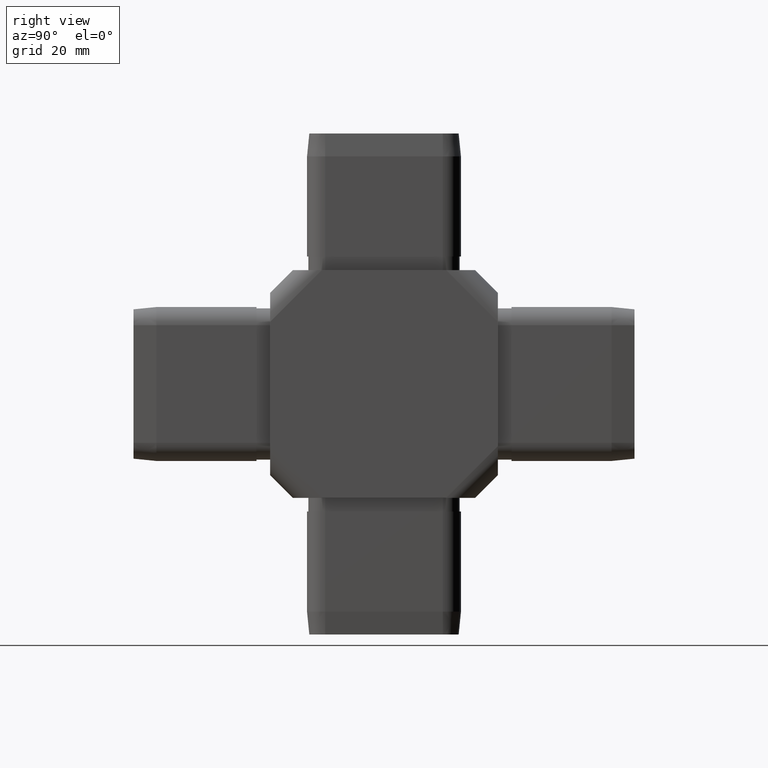
[diagram: clean part render]
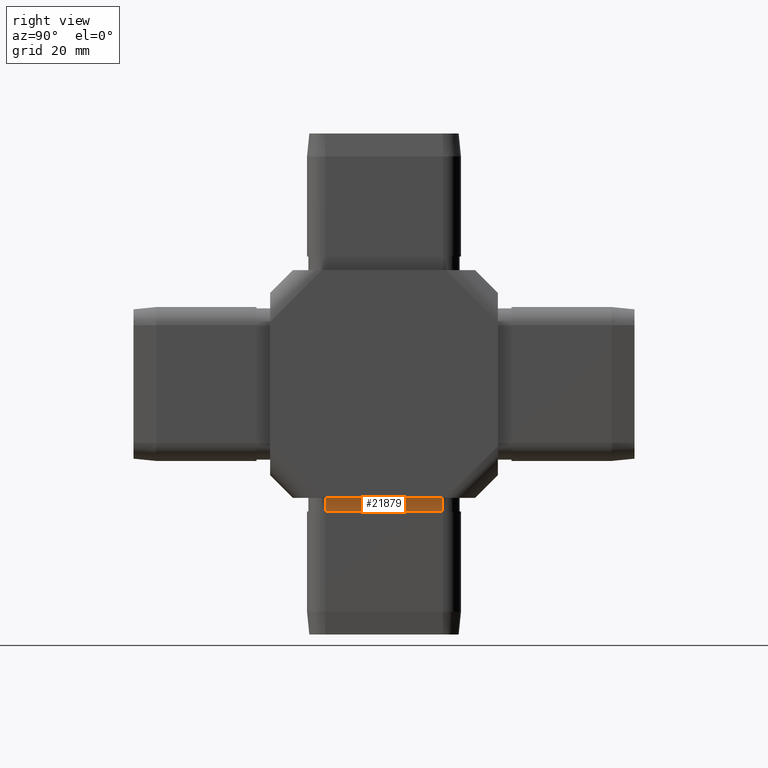
[diagram: same view with one face highlighted and labeled with its STEP entity id]
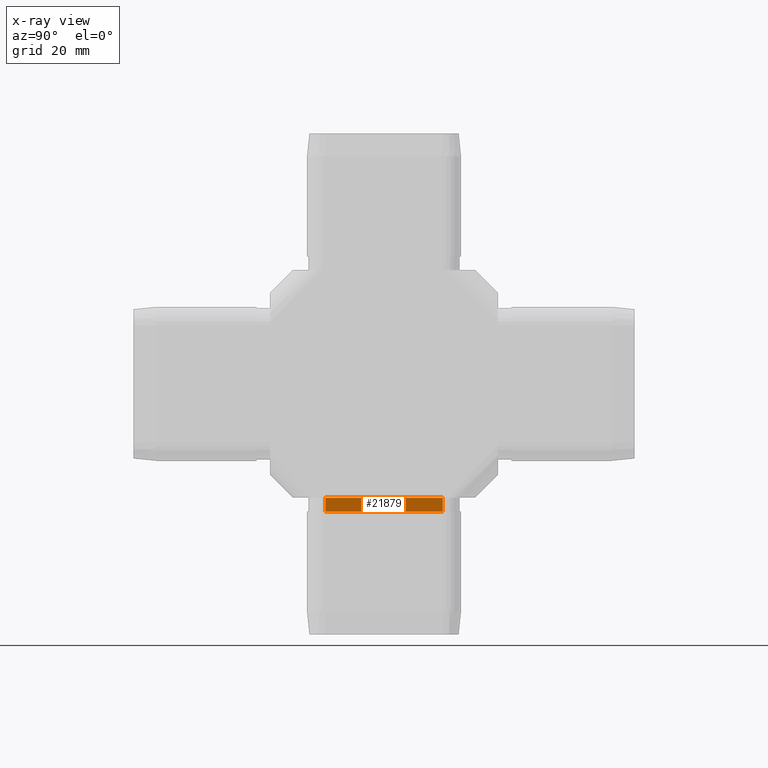
[diagram: x-ray of the same camera — body ghosted, the highlighted face saturated]
A machine part, right view. The second image highlights one B-rep face of the part: STEP entity #21879.
The next image is the same camera in x-ray: the body ghosted, the highlighted face saturated — about 0% of this face is hidden behind the body in this view.
In plain terms, the highlighted planar face has unit normal (1, 0, -0).
Its self-contained STEP definition (entity closure, byte-faithful):
#418 = VECTOR ( 'NONE', #23440, 1000.000000000000000 ) ;
#836 = LINE ( 'NONE', #19457, #20904 ) ;
#1452 = EDGE_LOOP ( 'NONE', ( #8921, #24577, #30544, #4935 ) ) ;
#2076 = EDGE_CURVE ( 'NONE', #27338, #2261, #27771, .T. ) ;
#2261 = VERTEX_POINT ( 'NONE', #8167 ) ;
#2726 = DIRECTION ( 'NONE',  ( 0.0000000000000000000, 0.0000000000000000000, 1.000000000000000000 ) ) ;
#4637 = DIRECTION ( 'NONE',  ( 1.000000000000000000, 1.344746880602177700E-016, -0.0000000000000000000 ) ) ;
#4935 = ORIENTED_EDGE ( 'NONE', *, *, #7882, .F. ) ;
#5797 = CARTESIAN_POINT ( 'NONE',  ( 16.59999999999999100, 12.89999999999997500, -25.00000000000000000 ) ) ;
#6196 = VERTEX_POINT ( 'NONE', #30458 ) ;
#7882 = EDGE_CURVE ( 'NONE', #6196, #16899, #18325, .T. ) ;
#8167 = CARTESIAN_POINT ( 'NONE',  ( 16.59999999999999400, -12.89999999999999300, -25.00000000000000000 ) ) ;
#8921 = ORIENTED_EDGE ( 'NONE', *, *, #20020, .T. ) ;
#10205 = EDGE_CURVE ( 'NONE', #16899, #2261, #836, .T. ) ;
#10411 = DIRECTION ( 'NONE',  ( 1.344746880602177700E-016, -1.000000000000000000, 0.0000000000000000000 ) ) ;
#12037 = FACE_OUTER_BOUND ( 'NONE', #1452, .T. ) ;
#13159 = VECTOR ( 'NONE', #26751, 1000.000000000000000 ) ;
#15319 = CARTESIAN_POINT ( 'NONE',  ( 16.59999999999999100, 12.89999999999997500, -28.00000000000000400 ) ) ;
#16899 = VERTEX_POINT ( 'NONE', #23517 ) ;
#18325 = LINE ( 'NONE', #15319, #19903 ) ;
#19314 = PLANE ( 'NONE',  #26142 ) ;
#19416 = CARTESIAN_POINT ( 'NONE',  ( 16.59999999999999100, 12.89999999999997500, -25.00000000000000000 ) ) ;
#19457 = CARTESIAN_POINT ( 'NONE',  ( 16.59999999999999400, -12.89999999999999300, -28.00000000000000400 ) ) ;
#19903 = VECTOR ( 'NONE', #10411, 1000.000000000000000 ) ;
#20020 = EDGE_CURVE ( 'NONE', #6196, #27338, #24361, .T. ) ;
#20904 = VECTOR ( 'NONE', #2726, 1000.000000000000000 ) ;
#21666 = DIRECTION ( 'NONE',  ( -1.344746880602177700E-016, 1.000000000000000000, 0.0000000000000000000 ) ) ;
#21879 = ADVANCED_FACE ( 'NONE', ( #12037 ), #19314, .T. ) ;
#23440 = DIRECTION ( 'NONE',  ( 0.0000000000000000000, 0.0000000000000000000, 1.000000000000000000 ) ) ;
#23517 = CARTESIAN_POINT ( 'NONE',  ( 16.59999999999999400, -12.89999999999999300, -28.00000000000000400 ) ) ;
#24361 = LINE ( 'NONE', #25830, #418 ) ;
#24577 = ORIENTED_EDGE ( 'NONE', *, *, #2076, .T. ) ;
#25830 = CARTESIAN_POINT ( 'NONE',  ( 16.59999999999999100, 12.89999999999997500, -28.00000000000000400 ) ) ;
#26142 = AXIS2_PLACEMENT_3D ( 'NONE', #26962, #4637, #21666 ) ;
#26751 = DIRECTION ( 'NONE',  ( 1.344746880602177700E-016, -1.000000000000000000, 0.0000000000000000000 ) ) ;
#26962 = CARTESIAN_POINT ( 'NONE',  ( 16.59999999999999100, 12.89999999999997500, -28.00000000000000400 ) ) ;
#27338 = VERTEX_POINT ( 'NONE', #5797 ) ;
#27771 = LINE ( 'NONE', #19416, #13159 ) ;
#30458 = CARTESIAN_POINT ( 'NONE',  ( 16.59999999999999100, 12.89999999999997500, -28.00000000000000400 ) ) ;
#30544 = ORIENTED_EDGE ( 'NONE', *, *, #10205, .F. ) ;